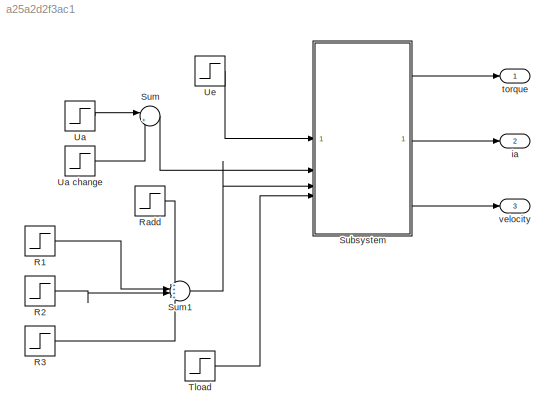
MODEL slx_a25a2d2f3ac1
KIND model
CONFIG AbsTol = auto
CONFIG EnableMultiTasking = off
CONFIG FixedStep = auto
CONFIG MaxStep = auto
CONFIG MinStep = auto
CONFIG RelTol = 1e-3
CONFIG SampleTimeConstraint = Unconstrained
CONFIG SolverName = VariableStepAuto
CONFIG StartTime = 0.0
CONFIG StopTime = Tmdl
BLOCK [Step] R1
  After = 0
  Before = r1
  SampleTime = 0
  Time = 10
BLOCK [Step] R2
  After = 0
  Before = r2
  SampleTime = 0
  Time = 25
BLOCK [Step] R3
  After = 0
  Before = r3
  SampleTime = 0
  Time = 40
BLOCK [Step] Radd
  After = radd
  SampleTime = 0
  Time = 50
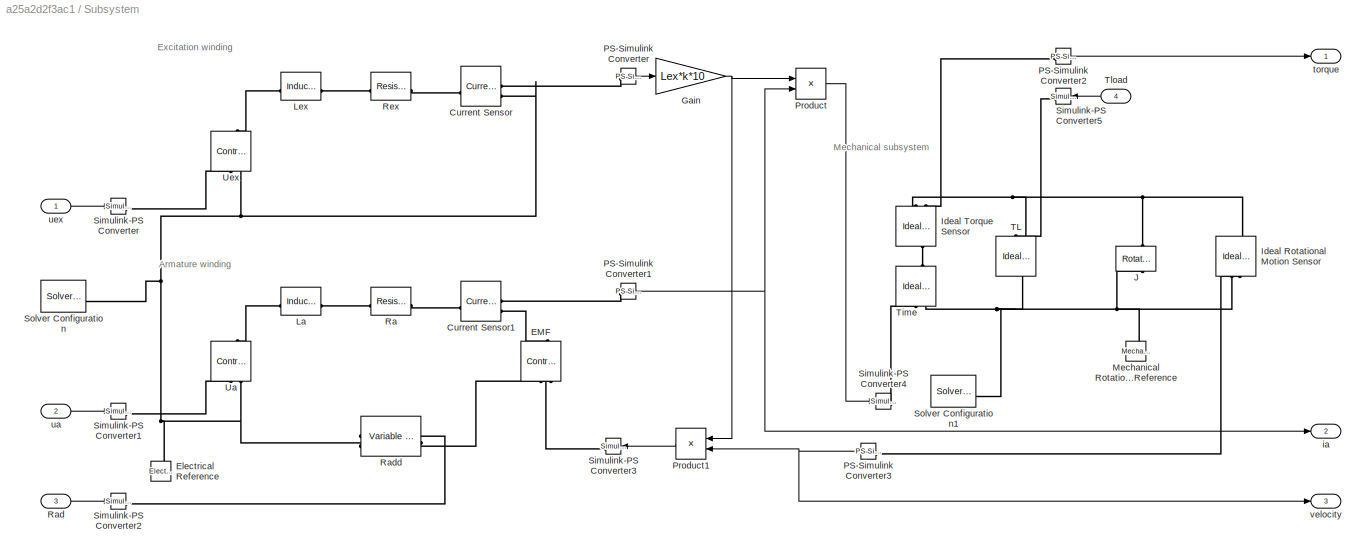
BLOCK [SubSystem] Subsystem
BLOCK [Reference] Subsystem/ Time  REF=fl_lib/Mechanical/Mechanical Sources/Ideal Torque Source
  NameLocation = right
  SourceBlock = fl_lib/Mechanical/Mechanical Sources/Ideal Torque Source
  SourceType = Ideal Torque Source
BLOCK [Reference] Subsystem/Current Sensor  REF=fl_lib/Electrical/Electrical Sensors/Current Sensor
  SourceBlock = fl_lib/Electrical/Electrical Sensors/Current Sensor
  SourceType = Current Sensor
BLOCK [Reference] Subsystem/Current Sensor1  REF=fl_lib/Electrical/Electrical Sensors/Current Sensor
  SourceBlock = fl_lib/Electrical/Electrical Sensors/Current Sensor
  SourceType = Current Sensor
BLOCK [Reference] Subsystem/EMF  REF=fl_lib/Electrical/Electrical Sources/Controlled Voltage
Source
  NameLocation = right
  SourceBlock = fl_lib/Electrical/Electrical Sources/Controlled Voltage\nSource
  SourceType = Controlled Voltage\nSource
BLOCK [Reference] Subsystem/Electrical Reference  REF=fl_lib/Electrical/Electrical Elements/Electrical Reference
  NameLocation = right
  SourceBlock = fl_lib/Electrical/Electrical Elements/Electrical Reference
  SourceType = Electrical Reference
BLOCK [Gain] Subsystem/Gain
  Gain = Lex*k*10
BLOCK [Reference] Subsystem/Ideal Rotational Motion Sensor  REF=fl_lib/Mechanical/Mechanical Sensors/Ideal Rotational
Motion Sensor
  NameLocation = left
  SourceBlock = fl_lib/Mechanical/Mechanical Sensors/Ideal Rotational\nMotion Sensor
  SourceType = Ideal Rotational\nMotion Sensor
BLOCK [Reference] Subsystem/Ideal Torque Sensor  REF=fl_lib/Mechanical/Mechanical Sensors/Ideal Torque Sensor
  NameLocation = right
  SourceBlock = fl_lib/Mechanical/Mechanical Sensors/Ideal Torque Sensor
  SourceType = Ideal Torque Sensor
BLOCK [Reference] Subsystem/J  REF=fl_lib/Mechanical/Rotational Elements/Rotational Inerter
  NameLocation = left
  SourceBlock = fl_lib/Mechanical/Rotational Elements/Rotational Inerter
  SourceType = Rotational Inerter
BLOCK [Reference] Subsystem/La  REF=fl_lib/Electrical/Electrical Elements/Inductor
  SourceBlock = fl_lib/Electrical/Electrical Elements/Inductor
  SourceType = Inductor
BLOCK [Reference] Subsystem/Lex  REF=fl_lib/Electrical/Electrical Elements/Inductor
  SourceBlock = fl_lib/Electrical/Electrical Elements/Inductor
  SourceType = Inductor
BLOCK [Reference] Subsystem/Mechanical Rotational Reference  REF=fl_lib/Mechanical/Rotational Elements/Mechanical
Rotational Reference
  NameLocation = right
  SourceBlock = fl_lib/Mechanical/Rotational Elements/Mechanical\nRotational Reference
  SourceType = Mechanical\nRotational Reference
BLOCK [Reference] Subsystem/PS-Simulink Converter  REF=nesl_utility/PS-Simulink
Converter
  NameLocation = left
  SourceBlock = nesl_utility/PS-Simulink\nConverter
  SourceType = PS-Simulink\nConverter
BLOCK [Reference] Subsystem/PS-Simulink Converter1  REF=nesl_utility/PS-Simulink
Converter
  NameLocation = left
  SourceBlock = nesl_utility/PS-Simulink\nConverter
  SourceType = PS-Simulink\nConverter
BLOCK [Reference] Subsystem/PS-Simulink Converter2  REF=nesl_utility/PS-Simulink
Converter
  SourceBlock = nesl_utility/PS-Simulink\nConverter
  SourceType = PS-Simulink\nConverter
BLOCK [Reference] Subsystem/PS-Simulink Converter3  REF=nesl_utility/PS-Simulink
Converter
  NameLocation = top
  SourceBlock = nesl_utility/PS-Simulink\nConverter
  SourceType = PS-Simulink\nConverter
BLOCK [Product] Subsystem/Product
BLOCK [Product] Subsystem/Product1
  NameLocation = top
BLOCK [Reference] Subsystem/Ra  REF=fl_lib/Electrical/Electrical Elements/Resistor
  SourceBlock = fl_lib/Electrical/Electrical Elements/Resistor
  SourceType = Resistor
BLOCK [Inport] Subsystem/Rad
  Port = 3
BLOCK [Reference] Subsystem/Radd  REF=fl_lib/Electrical/Electrical Elements/Variable Resistor
  NameLocation = top
  SourceBlock = fl_lib/Electrical/Electrical Elements/Variable Resistor
  SourceType = Variable Resistor
BLOCK [Reference] Subsystem/Rex  REF=fl_lib/Electrical/Electrical Elements/Resistor
  SourceBlock = fl_lib/Electrical/Electrical Elements/Resistor
  SourceType = Resistor
BLOCK [Reference] Subsystem/Simulink-PS Converter  REF=nesl_utility/Simulink-PS
Converter
  SourceBlock = nesl_utility/Simulink-PS\nConverter
  SourceType = Simulink-PS\nConverter
BLOCK [Reference] Subsystem/Simulink-PS Converter1  REF=nesl_utility/Simulink-PS
Converter
  SourceBlock = nesl_utility/Simulink-PS\nConverter
  SourceType = Simulink-PS\nConverter
BLOCK [Reference] Subsystem/Simulink-PS Converter2  REF=nesl_utility/Simulink-PS
Converter
  SourceBlock = nesl_utility/Simulink-PS\nConverter
  SourceType = Simulink-PS\nConverter
BLOCK [Reference] Subsystem/Simulink-PS Converter3  REF=nesl_utility/Simulink-PS
Converter
  NameLocation = top
  SourceBlock = nesl_utility/Simulink-PS\nConverter
  SourceType = Simulink-PS\nConverter
BLOCK [Reference] Subsystem/Simulink-PS Converter4  REF=nesl_utility/Simulink-PS
Converter
  SourceBlock = nesl_utility/Simulink-PS\nConverter
  SourceType = Simulink-PS\nConverter
BLOCK [Reference] Subsystem/Simulink-PS Converter5  REF=nesl_utility/Simulink-PS
Converter
  NameLocation = top
  SourceBlock = nesl_utility/Simulink-PS\nConverter
  SourceType = Simulink-PS\nConverter
BLOCK [Reference] Subsystem/Solver Configuration  REF=nesl_utility/Solver
Configuration
  SourceBlock = nesl_utility/Solver\nConfiguration
  SourceType = Solver\nConfiguration
BLOCK [Reference] Subsystem/Solver Configuration1  REF=nesl_utility/Solver
Configuration
  SourceBlock = nesl_utility/Solver\nConfiguration
  SourceType = Solver\nConfiguration
BLOCK [Reference] Subsystem/TL  REF=fl_lib/Mechanical/Mechanical Sources/Ideal Torque Source
  NameLocation = left
  SourceBlock = fl_lib/Mechanical/Mechanical Sources/Ideal Torque Source
  SourceType = Ideal Torque Source
BLOCK [Inport] Subsystem/Tload
  NameLocation = top
  Port = 4
BLOCK [Reference] Subsystem/Ua  REF=fl_lib/Electrical/Electrical Sources/Controlled Voltage
Source
  NameLocation = right
  SourceBlock = fl_lib/Electrical/Electrical Sources/Controlled Voltage\nSource
  SourceType = Controlled Voltage\nSource
BLOCK [Reference] Subsystem/Uex  REF=fl_lib/Electrical/Electrical Sources/Controlled Voltage
Source
  NameLocation = right
  SourceBlock = fl_lib/Electrical/Electrical Sources/Controlled Voltage\nSource
  SourceType = Controlled Voltage\nSource
BLOCK [Outport] Subsystem/ia
  Port = 2
BLOCK [Outport] Subsystem/torque
BLOCK [Inport] Subsystem/ua
  Port = 2
BLOCK [Inport] Subsystem/uex
BLOCK [Outport] Subsystem/velocity
  Port = 3
BLOCK [Sum] Sum
  Inputs = |+-
BLOCK [Sum] Sum1
  Inputs = ++++
BLOCK [Step] Tload
  After = Tload
  SampleTime = 0
BLOCK [Step] Ua
  After = ua
  SampleTime = 0
BLOCK [Step] Ua change
  After = Ua_change
  SampleTime = 0
  Time = 50
BLOCK [Step] Ue
  After = ue
  SampleTime = 0
  Time = 0
BLOCK [Outport] ia
  Port = 2
  SignalName = ia
BLOCK [Outport] torque
  SignalName = torque
BLOCK [Outport] velocity
  Port = 3
  SignalName = velocity
ANNOTATION Subsystem: Armature winding
ANNOTATION Subsystem: Excitation winding
ANNOTATION Subsystem: Mechanical subsystem
LINE R1:1 -> Sum1:2
LINE R2:1 -> Sum1:3
LINE R3:1 -> Sum1:4
LINE Radd:1 -> Sum1:1
NET Subsystem/Gain:1 -> Subsystem/Product1:1, Subsystem/Product:1
NET Subsystem/PS-Simulink Converter1:1 -> Subsystem/Product:2, Subsystem/ia:1
LINE Subsystem/PS-Simulink Converter2:1 -> Subsystem/torque:1
NET Subsystem/PS-Simulink Converter3:1 -> Subsystem/Product1:2, Subsystem/velocity:1
LINE Subsystem/PS-Simulink Converter:1 -> Subsystem/Gain:1
LINE Subsystem/Product1:1 -> Subsystem/Simulink-PS Converter3:1
LINE Subsystem/Product:1 -> Subsystem/Simulink-PS Converter4:1
LINE Subsystem/Rad:1 -> Subsystem/Simulink-PS Converter2:1
LINE Subsystem/Tload:1 -> Subsystem/Simulink-PS Converter5:1
LINE Subsystem/ua:1 -> Subsystem/Simulink-PS Converter1:1
LINE Subsystem/uex:1 -> Subsystem/Simulink-PS Converter:1
LINE Subsystem:1 -> torque:1
LINE Subsystem:2 -> ia:1
LINE Subsystem:3 -> velocity:1
LINE Sum1:1 -> Subsystem:3
LINE Sum:1 -> Subsystem:2
LINE Tload:1 -> Subsystem:4
LINE Ua change:1 -> Sum:2
LINE Ua:1 -> Sum:1
LINE Ue:1 -> Subsystem:1
PLINE Subsystem/ Time:LConn1 -- Subsystem/Ideal Torque Sensor:LConn1
PLINE Subsystem/ Time:RConn1 -- Subsystem/Simulink-PS Converter4:RConn1
PNET net1: Subsystem/ Time:RConn2 -- Subsystem/Ideal Rotational Motion Sensor:RConn1 -- Subsystem/J:RConn1 -- Subsystem/Mechanical Rotational Reference:LConn1 -- Subsystem/Solver Configuration1:RConn1 -- Subsystem/TL:LConn1
PLINE Subsystem/Current Sensor1:LConn1 -- Subsystem/Ra:RConn1
PLINE Subsystem/Current Sensor1:RConn1 -- Subsystem/PS-Simulink Converter1:LConn1
PLINE Subsystem/Current Sensor1:RConn2 -- Subsystem/EMF:LConn1
PLINE Subsystem/Current Sensor:LConn1 -- Subsystem/Rex:RConn1
PLINE Subsystem/Current Sensor:RConn1 -- Subsystem/PS-Simulink Converter:LConn1
PNET net2: Subsystem/Current Sensor:RConn2 -- Subsystem/Electrical Reference:LConn1 -- Subsystem/Radd:RConn1 -- Subsystem/Solver Configuration:RConn1 -- Subsystem/Ua:RConn2 -- Subsystem/Uex:RConn2
PLINE Subsystem/EMF:RConn1 -- Subsystem/Simulink-PS Converter3:RConn1
PLINE Subsystem/EMF:RConn2 -- Subsystem/Radd:LConn2
PNET net3: Subsystem/Ideal Rotational Motion Sensor:LConn1 -- Subsystem/Ideal Torque Sensor:RConn1 -- Subsystem/J:LConn1 -- Subsystem/TL:RConn2
PLINE Subsystem/Ideal Rotational Motion Sensor:RConn2 -- Subsystem/PS-Simulink Converter3:LConn1
PLINE Subsystem/Ideal Torque Sensor:RConn2 -- Subsystem/PS-Simulink Converter2:LConn1
PLINE Subsystem/La:LConn1 -- Subsystem/Ua:LConn1
PLINE Subsystem/La:RConn1 -- Subsystem/Ra:LConn1
PLINE Subsystem/Lex:LConn1 -- Subsystem/Uex:LConn1
PLINE Subsystem/Lex:RConn1 -- Subsystem/Rex:LConn1
PLINE Subsystem/Radd:LConn1 -- Subsystem/Simulink-PS Converter2:RConn1
PLINE Subsystem/Simulink-PS Converter1:RConn1 -- Subsystem/Ua:RConn1
PLINE Subsystem/Simulink-PS Converter5:RConn1 -- Subsystem/TL:RConn1
PLINE Subsystem/Simulink-PS Converter:RConn1 -- Subsystem/Uex:RConn1
note: NET lines group one-source signal fan-out (src -> all destinations, sorted); 1:1 wires keep LINE; PNET lines group multi-terminal physical nets as a canonical sorted terminal list (undirected conserving connections); 2-terminal nets keep the pairwise PLINE form
